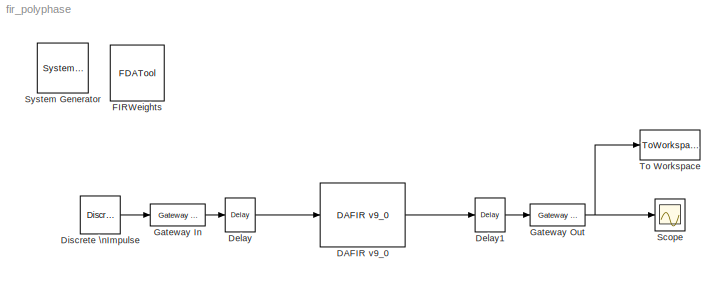
MODEL fir_polyphase
KIND model
CONFIG StopFcn = Result = Result(~isnan(Result));\ndoFFTplot((10e6)/8,[Result],['Result'],8,2)
BLOCK [Reference]  System Generator  REF=xbsIndex_r4/ System Generator
  AttributesFormatString = System\\nGenerator
  FunctionWithSeparateData = off
  Ports = []
  RTWMemSecDataConstants = Inherit from model
  RTWMemSecDataInternal = Inherit from model
  RTWMemSecDataParameters = Inherit from model
  RTWMemSecFuncExecute = Inherit from model
  RTWMemSecFuncInitTerm = Inherit from model
  ShowPortLabels = FromPortIcon
  SourceBlock = xbsIndex_r4/ System Generator
  SourceType = Xilinx System Generator Block
  SystemSampleTime = -1
  Tag = genX
  UserData = DataTag0
  UserDataPersistent = on
  block_type = sysgen
  block_version = 8.2
  clock_wrapper = Clock Enables
  core_generation = According to Block Masks
  dbl_ovrd = According to Block Masks
  dcm_input_clock_period = 100
  deprecated_control = off
  directory = ./netlist
  eval_field = 0
  has_advanced_control = 0
  incr_netlist = off
  infoedit = System Generator
  package = ff896
  part = xc2vp30
  run_coregen = off
  sg_blockgui_xml = <!--  *  <copyright redacted>\n <icon width=\"51\" bg_color=\"beige\" height=\"50\" capti...<+2851ch>
  sg_icon_stat = 51,50,-1,-1,red,beige,0,07734
  sg_mask_display = fprintf('','COMMENT: begin icon graphics');\npatch([0 51 51 0 ],[0 0 50 50 ],[0.93 0.92 0.86]);\npatch([12 4 16 4 12 25 29 33 47 36 25 17 29 17 25 36 47 33 29 25 12 ],[5 13 25 37 45 45 41 45 45 34 45 37 25 13 5 16 5 5 9 5 5 ],[0.6 0.2 0.25]);\nplot([0 0 51 51 0 ],[0 50 50 0 0 ]);\nfprintf('','COMMENT: end icon graphics');\nfprintf('','COMMENT: begin icon text');\nfprintf('','COMMENT: end icon text...<+5ch>
  sggui_pos = -1,-1,-1,-1
  simulink_period = 1/200e6
  speed = -7
  synthesis_tool = XST
  sysclk_period = 10
  testbench = off
  trim_vbits = Everywhere in SubSystem
  xilinxfamily = virtex2p
BLOCK [Reference] DAFIR v9_0   REF=xbsIndex_r4/DAFIR v9_0 
  Ports = [1, 1]
  SourceBlock = xbsIndex_r4/DAFIR v9_0
  SourceType = Xilinx Finite Impulse Response Filter Block
  block_type = fir
  block_version = 8.2.01
  coef = xlfda_numerator('FIRWeights')
  coef_bin_pt = 15
  coef_n_bits = 16
  dbl_ovrd = off
  explicit_period = off
  has_advanced_control = 0
  infoedit = Hardware notes: Implemented using distributed arithmetic (DA).  The hardware over sampling rate determines the degree of parallelism.  A rate of one produces a fully parallel DA filter.  A rate of n (resp., n+1) for an n-bit input signal produces a fully serial implementation for a non-symmetric (resp., symmetric) impulse response.  Intermediate values produce implementations with intermediate lev...<+19ch>
  latency = 14
  num_channels = 1
  over_sample = 1
  period = 1
  polyphase_behavior = Decimate:  8:1 (samples in:out)
  reload = off
  rst = off
  serial_input = off
  sg_icon_stat = 85,64,1,1,white,blue,0,a2268d6c,right
  sg_mask_display = fprintf('','COMMENT: begin icon graphics');\npatch([0 60 60 0 ],[0 0 62 62 ],[0.77 0.82 0.91]);\npatch([14 4 18 4 14 30 34 38 55 42 29 20 35 20 29 42 55 38 34 30 14 ],[7 17 31 45 55 55 51 55 55 42 55 46 31 16 7 20 7 7 11 7 7 ],[0.98 0.96 0.92]);\nplot([0 60 60 0 0 ],[0 0 62 62 0 ]);\nfprintf('','COMMENT: end icon graphics');\nfprintf('','COMMENT: begin icon text');\ncolor('black');port_label('inpu...<+130ch>
  sggui_pos = 1239,146,356,489
  structure = Inferred from Coefficients
  use_isim = 0
  valids = off
  xl_area = [0,0,0,0,0,0,0]
  xl_use_area = off
BLOCK [Reference] Delay  REF=xbsIndex_r4/Delay
  Ports = [1, 1]
  SourceBlock = xbsIndex_r4/Delay
  SourceType = Xilinx Delay Block
  block_type = delay
  block_version = 10.1.2
  dbl_ovrd = off
  en = off
  has_advanced_control = 0
  infoedit = Hardware notes: A delay line is a chain, each link of which is an SRL16 followed by a flip-flop.
  latency = 1
  reg_retiming = off
  sg_icon_stat = 30,34,1,1,white,blue,0,fc531c0e,right
  sg_mask_display = fprintf('','COMMENT: begin icon graphics');\npatch([0 60 60 0 ],[0 0 56 56 ],[0.77 0.82 0.91]);\npatch([15 6 19 6 15 30 34 38 54 41 29 20 32 20 29 41 54 38 34 30 15 ],[6 15 28 41 50 50 46 50 50 37 49 40 28 16 7 19 6 6 10 6 6 ],[0.98 0.96 0.92]);\nplot([0 60 60 0 0 ],[0 0 56 56 0 ]);\nfprintf('','COMMENT: end icon graphics');\nfprintf('','COMMENT: begin icon text');\ncolor('black');disp('z^{-1}','t...<+55ch>
  sggui_pos = -1,-1,-1,-1
  xl_area = [0,0,0,0,0,0,0]
  xl_use_area = off
BLOCK [Reference] Delay1  REF=xbsIndex_r4/Delay
  Ports = [1, 1]
  SourceBlock = xbsIndex_r4/Delay
  SourceType = Xilinx Delay Block
  block_type = delay
  block_version = 10.1.2
  dbl_ovrd = off
  en = off
  has_advanced_control = 0
  infoedit = Hardware notes: A delay line is a chain, each link of which is an SRL16 followed by a flip-flop.
  latency = 1
  reg_retiming = off
  sg_icon_stat = 30,34,1,1,white,blue,0,fc531c0e,right
  sg_mask_display = fprintf('','COMMENT: begin icon graphics');\npatch([0 60 60 0 ],[0 0 56 56 ],[0.77 0.82 0.91]);\npatch([15 6 19 6 15 30 34 38 54 41 29 20 32 20 29 41 54 38 34 30 15 ],[6 15 28 41 50 50 46 50 50 37 49 40 28 16 7 19 6 6 10 6 6 ],[0.98 0.96 0.92]);\nplot([0 60 60 0 0 ],[0 0 56 56 0 ]);\nfprintf('','COMMENT: end icon graphics');\nfprintf('','COMMENT: begin icon text');\ncolor('black');disp('z^{-1}','t...<+55ch>
  sggui_pos = -1,-1,-1,-1
  xl_area = [0,0,0,0,0,0,0]
  xl_use_area = off
BLOCK [Reference] Discrete \nImpulse  REF=dspsrcs4/Discrete \nImpulse
  Delay = 0
  FrameSample = 1
  Ports = [0, 1]
  SampleTime = 1/200e6
  SourceBlock = dspsrcs4/Discrete \nImpulse
  SourceType = Discrete Impulse
  additionalParams = off
  allowOverrides = on
  dataType = double
  fracBitsMode = Best precision
  isSigned = on
  numFracBits = 15
  udDataType = sfix(16)
  wordLen = 16
BLOCK [Reference] FIRWeights  REF=xbsIndex_r4/FDATool
  Ports = []
  ShowPortLabels = on
  SourceBlock = xbsIndex_r4/FDATool
  SourceType = Xilinx FDATool Interface Block
  UserData = DataTag1
  UserDataPersistent = on
  block_type = fdatool
  block_version = 8.2
  has_advanced_control = 0
  infoedit = FDATool
  sg_blockgui_xml = <!--  *  <copyright redacted>\n <initialization file=\"xlfdatool_init.m\" />\n <block_creation_script file=\"fd...<+1282ch>
  sg_icon_stat = 54,56,-1,-1,blue,white,0,07734,right
  sg_mask_display = fprintf('','COMMENT: begin icon graphics');\npatch([0 54 54 0 ],[0 0 56 56 ],[0.98 0.96 0.92]);\npatch([13 4 17 4 13 27 31 35 50 38 26 18 32 18 26 38 50 35 31 27 13 ],[7 16 29 42 51 51 47 51 51 39 51 43 29 15 7 19 7 7 11 7 7 ],[0.77 0.82 0.91]);\nplot([0 54 54 0 0 ],[0 0 56 56 0 ]);\nfprintf('','COMMENT: end icon graphics');\nfprintf('','COMMENT: begin icon text');\nfprintf('','COMMENT: end icon t...<+56ch>
  sggui_pos = -1,-1,-1,-1
BLOCK [Reference] Gateway In  REF=xbsIndex_r4/Gateway In
  LOCs = {}
  Ports = [1, 1]
  SourceBlock = xbsIndex_r4/Gateway In
  SourceType = Xilinx Gateway In Block
  arith_type = Signed  (2's comp)
  bin_pt = 6
  block_type = gatewayin
  block_version = VER_STRING_GOES_HERE
  dbl_ovrd = off
  has_advanced_control = 0
  infoedit = Gateway in block.  Converts inputs of type Simulink integer, double and fixed point to  Xilinx fixed point type.<P><P>Hardware notes:  In hardware these blocks become top level input ports.
  locs_specified = off
  n_bits = 8
  overflow = Wrap
  period = 1/200e6
  quantization = Truncate
  sg_icon_stat = 55,22,1,1,white,yellow,0,bc55d28f,right
  sg_mask_display = fprintf('','COMMENT: begin icon graphics');\npatch([0 65 65 0 ],[0 0 20 20 ],[0.95 0.93 0.65]);\npatch([27 24 29 24 27 32 33 34 40 36 32 29 34 29 32 36 40 34 33 32 27 ],[2 5 10 15 18 18 17 18 18 14 18 15 10 5 2 6 2 2 3 2 2 ],[0.98 0.96 0.92]);\nplot([0 65 65 0 0 ],[0 0 20 20 0 ]);\nfprintf('','COMMENT: end icon graphics');\nfprintf('','COMMENT: begin icon text');\ncolor('black');port_label('input'...<+131ch>
  sggui_pos = 20,20,356,432
  timing_constraint = None
  xl_area = [0, 0, 0, 0, 0, 0, 0]
  xl_use_area = off
BLOCK [Reference] Gateway Out  REF=xbsIndex_r4/Gateway Out
  LOCs = {}
  Ports = [1, 1]
  SourceBlock = xbsIndex_r4/Gateway Out
  SourceType = Xilinx Gateway Out Block
  block_type = gatewayout
  block_version = VER_STRING_GOES_HERE
  has_advanced_control = 0
  hdl_port = on
  infoedit = Gateway out block.  Converts Xilinx fixed point inputs into ouputs of type Simulink integer, double, or fixed point.<P><P>Hardware notes:  In hardware these blocks become top level output ports or are discarded, depending on how they are configured.
  locs_specified = off
  sg_icon_stat = 55,22,1,1,white,yellow,0,38220381,right
  sg_mask_display = fprintf('','COMMENT: begin icon graphics');\npatch([0 55 55 0 ],[0 0 22 22 ],[0.95 0.93 0.65]);\npatch([22 18 23 18 22 28 30 32 38 33 28 25 31 25 28 33 38 32 30 28 22 ],[2 6 11 16 20 20 18 20 20 15 20 17 11 5 2 7 2 2 4 2 2 ],[0.98 0.96 0.92]);\nplot([0 55 55 0 0 ],[0 0 22 22 0 ]);\nfprintf('','COMMENT: end icon graphics');\nfprintf('','COMMENT: begin icon text');\ncolor('black');port_label('input'...<+132ch>
  sggui_pos = -1,-1,-1,-1
  timing_constraint = None
  xl_area = [0, 0, 0, 0, 0, 0, 0]
  xl_use_area = off
BLOCK [Scope] Scope
  DataFormat = StructureWithTime
  Floating = off
  NumInputPorts = 1
  Ports = [1]
  SampleTime = 0
  ZoomMode = xonly
BLOCK [ToWorkspace] To Workspace
  MaxDataPoints = inf
  SampleTime = -1
  SaveFormat = Array
  StartFcn = close all hidden
  VariableName = Result
LINE DAFIR v9_0 :1 -> Delay1:1
LINE Delay1:1 -> Gateway Out:1
LINE Delay:1 -> DAFIR v9_0 :1
LINE Discrete \nImpulse:1 -> Gateway In:1
LINE Gateway In:1 -> Delay:1
NET Gateway Out:1 -> Scope:1, To Workspace:1
note: NET lines group one-source signal fan-out (src -> all destinations, sorted); 1:1 wires keep LINE
